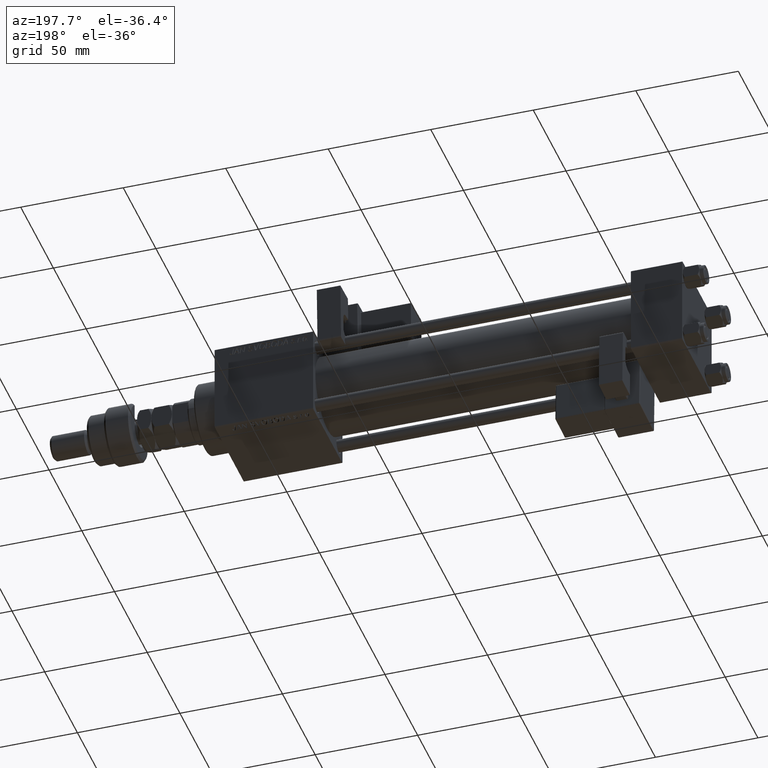
[diagram: clean part render]
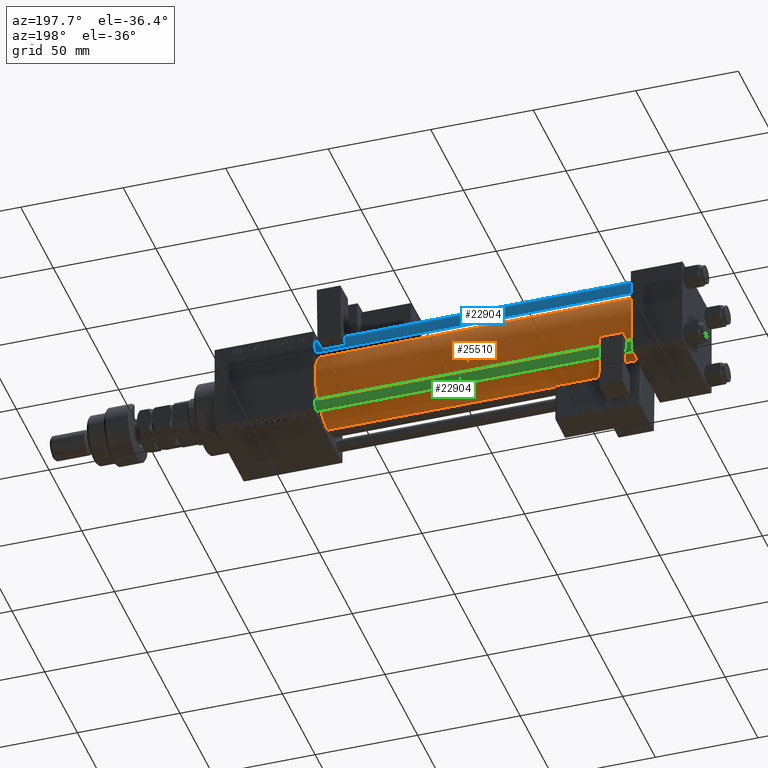
[diagram: same view with three faces highlighted in distinct colors, each labeled with its STEP entity id]
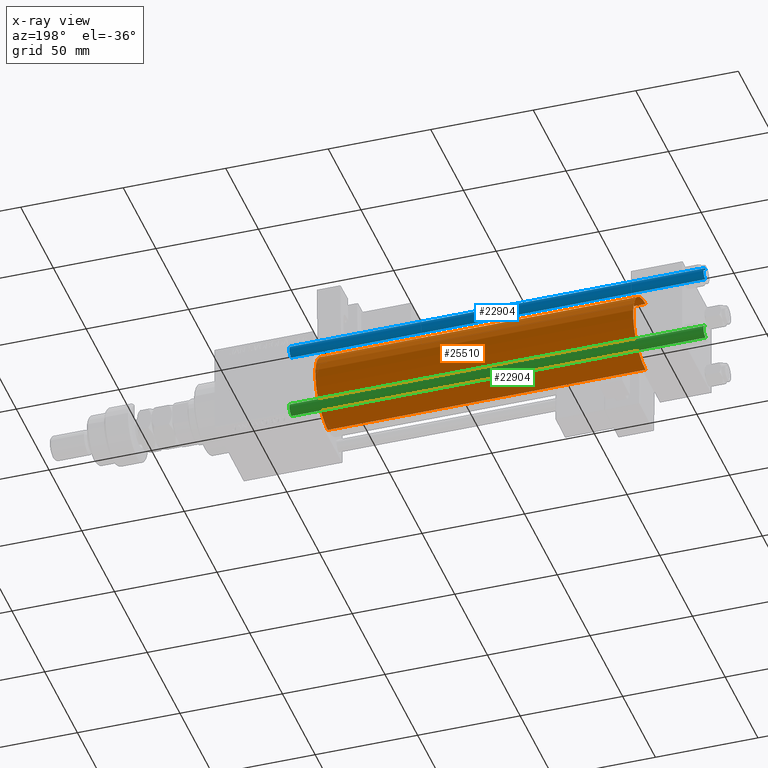
[diagram: x-ray of the same camera — body ghosted, the three highlighted faces saturated]
A machine part, auxiliary view with three faces highlighted in distinct colors.
The next image is the same camera in x-ray (body ghosted, the three faces saturated) — at least one of them is partly hidden behind the body in this view.
Their STEP definitions:

[orange] entity #25510 — the highlighted cylindrical surface (partial cylindrical patch) has radius 19 mm, axis along (-1, -0, -0).
#1004 = DIRECTION ( 'NONE',  ( 1.000000000000000000, 0.000000000000000000, 0.000000000000000000 ) ) ;
#2921 = EDGE_LOOP ( 'NONE', ( #24106, #9948, #3777, #14807 ) ) ;
#3777 = ORIENTED_EDGE ( 'NONE', *, *, #40003, .T. ) ;
#6542 = CARTESIAN_POINT ( 'NONE',  ( 24.99999999999999289, -2.602085213965210642E-15, 0.000000000000000000 ) ) ;
#7834 = EDGE_CURVE ( 'NONE', #16027, #47866, #12223, .T. ) ;
#9948 = ORIENTED_EDGE ( 'NONE', *, *, #13342, .T. ) ;
#10265 = DIRECTION ( 'NONE',  ( 0.000000000000000000, 0.000000000000000000, -1.000000000000000000 ) ) ;
#11372 = VECTOR ( 'NONE', #17834, 1000.000000000000000 ) ;
#12223 = CIRCLE ( 'NONE', #33664, 19.00000000000000000 ) ;
#13342 = EDGE_CURVE ( 'NONE', #16027, #51656, #40198, .T. ) ;
#14807 = ORIENTED_EDGE ( 'NONE', *, *, #43627, .F. ) ;
#15056 = CARTESIAN_POINT ( 'NONE',  ( 24.99999999999999289, -2.602085213965210642E-15, 19.00000000000000000 ) ) ;
#16027 = VERTEX_POINT ( 'NONE', #22408 ) ;
#16064 = CYLINDRICAL_SURFACE ( 'NONE', #25097, 19.00000000000000000 ) ;
#17834 = DIRECTION ( 'NONE',  ( -1.000000000000000000, -0.000000000000000000, -0.000000000000000000 ) ) ;
#18949 = CARTESIAN_POINT ( 'NONE',  ( 180.0000000000000000, -2.602085213965210642E-15, 0.000000000000000000 ) ) ;
#19442 = DIRECTION ( 'NONE',  ( 0.000000000000000000, 0.000000000000000000, 1.000000000000000000 ) ) ;
#21959 = AXIS2_PLACEMENT_3D ( 'NONE', #6542, #23658, #19442 ) ;
#22408 = CARTESIAN_POINT ( 'NONE',  ( 180.0000000000000000, -2.752562955852396712E-16, -19.00000000000000000 ) ) ;
#23658 = DIRECTION ( 'NONE',  ( 1.000000000000000000, -0.000000000000000000, 0.000000000000000000 ) ) ;
#23823 = CARTESIAN_POINT ( 'NONE',  ( 180.0000000000000000, -2.602085213965210642E-15, 19.00000000000000000 ) ) ;
#24106 = ORIENTED_EDGE ( 'NONE', *, *, #7834, .F. ) ;
#24212 = CARTESIAN_POINT ( 'NONE',  ( 180.0000000000000000, -2.602085213965210642E-15, 0.000000000000000000 ) ) ;
#25097 = AXIS2_PLACEMENT_3D ( 'NONE', #24212, #37884, #28125 ) ;
#25510 = ADVANCED_FACE ( 'NONE', ( #40977 ), #16064, .T. ) ;
#26465 = CARTESIAN_POINT ( 'NONE',  ( 180.0000000000000000, -2.602085213965210642E-15, 19.00000000000000000 ) ) ;
#28125 = DIRECTION ( 'NONE',  ( 0.000000000000000000, 0.000000000000000000, 1.000000000000000000 ) ) ;
#29839 = DIRECTION ( 'NONE',  ( -1.000000000000000000, -0.000000000000000000, -0.000000000000000000 ) ) ;
#30181 = CARTESIAN_POINT ( 'NONE',  ( 24.99999999999999289, -2.752562955852396712E-16, -19.00000000000000000 ) ) ;
#33664 = AXIS2_PLACEMENT_3D ( 'NONE', #18949, #1004, #10265 ) ;
#37884 = DIRECTION ( 'NONE',  ( -1.000000000000000000, -0.000000000000000000, -0.000000000000000000 ) ) ;
#40003 = EDGE_CURVE ( 'NONE', #51656, #46651, #46069, .T. ) ;
#40198 = LINE ( 'NONE', #44119, #11372 ) ;
#40977 = FACE_OUTER_BOUND ( 'NONE', #2921, .T. ) ;
#43627 = EDGE_CURVE ( 'NONE', #47866, #46651, #47709, .T. ) ;
#44119 = CARTESIAN_POINT ( 'NONE',  ( 180.0000000000000000, -2.752562955852396712E-16, -19.00000000000000000 ) ) ;
#46069 = CIRCLE ( 'NONE', #21959, 19.00000000000000000 ) ;
#46237 = VECTOR ( 'NONE', #29839, 1000.000000000000000 ) ;
#46651 = VERTEX_POINT ( 'NONE', #15056 ) ;
#47709 = LINE ( 'NONE', #26465, #46237 ) ;
#47866 = VERTEX_POINT ( 'NONE', #23823 ) ;
#51656 = VERTEX_POINT ( 'NONE', #30181 ) ;

[blue] entity #22904 — the highlighted cylindrical surface (edge-blend (fillet) strip) has radius 3 mm, axis along (-1, 0, 0).
#2192 = VERTEX_POINT ( 'NONE', #43829 ) ;
#2304 = LINE ( 'NONE', #11292, #29148 ) ;
#4914 = VERTEX_POINT ( 'NONE', #45361 ) ;
#8970 = ORIENTED_EDGE ( 'NONE', *, *, #41607, .F. ) ;
#9900 = ORIENTED_EDGE ( 'NONE', *, *, #53137, .T. ) ;
#10441 = EDGE_CURVE ( 'NONE', #50432, #4914, #2304, .T. ) ;
#11125 = FACE_OUTER_BOUND ( 'NONE', #25184, .T. ) ;
#11292 = CARTESIAN_POINT ( 'NONE',  ( 3.000000000000000444, 3.673940397442059868E-16, 203.0000000000000000 ) ) ;
#13398 = ORIENTED_EDGE ( 'NONE', *, *, #46546, .T. ) ;
#13432 = VERTEX_POINT ( 'NONE', #24525 ) ;
#14246 = DIRECTION ( 'NONE',  ( -0.000000000000000000, -0.000000000000000000, 1.000000000000000000 ) ) ;
#15727 = AXIS2_PLACEMENT_3D ( 'NONE', #28460, #40744, #49428 ) ;
#16166 = CYLINDRICAL_SURFACE ( 'NONE', #44734, 3.000000000000000444 ) ;
#17326 = CARTESIAN_POINT ( 'NONE',  ( 3.000000000000000444, 3.673940397442059868E-16, 202.5000000000000853 ) ) ;
#18295 = CIRCLE ( 'NONE', #15727, 3.000000000000000444 ) ;
#22904 = ADVANCED_FACE ( 'NONE', ( #11125 ), #16166, .T. ) ;
#23158 = AXIS2_PLACEMENT_3D ( 'NONE', #40516, #14246, #31343 ) ;
#23754 = DIRECTION ( 'NONE',  ( -0.000000000000000000, -0.000000000000000000, -1.000000000000000000 ) ) ;
#24525 = CARTESIAN_POINT ( 'NONE',  ( -3.000000000000000444, 0.000000000000000000, 0.5000000000001114664 ) ) ;
#25184 = EDGE_LOOP ( 'NONE', ( #9900, #37582, #13398, #8970 ) ) ;
#28229 = CARTESIAN_POINT ( 'NONE',  ( 0.000000000000000000, 0.000000000000000000, 203.0000000000000000 ) ) ;
#28460 = CARTESIAN_POINT ( 'NONE',  ( 0.000000000000000000, 0.000000000000000000, 202.5000000000000853 ) ) ;
#29148 = VECTOR ( 'NONE', #54142, 1000.000000000000000 ) ;
#31343 = DIRECTION ( 'NONE',  ( 1.000000000000000000, 0.000000000000000000, 0.000000000000000000 ) ) ;
#32991 = CIRCLE ( 'NONE', #23158, 3.000000000000000444 ) ;
#37582 = ORIENTED_EDGE ( 'NONE', *, *, #10441, .T. ) ;
#40516 = CARTESIAN_POINT ( 'NONE',  ( 0.000000000000000000, 0.000000000000000000, 0.5000000000001114664 ) ) ;
#40744 = DIRECTION ( 'NONE',  ( 0.000000000000000000, 0.000000000000000000, -1.000000000000000000 ) ) ;
#41607 = EDGE_CURVE ( 'NONE', #2192, #13432, #54110, .T. ) ;
#43829 = CARTESIAN_POINT ( 'NONE',  ( -3.000000000000000444, 0.000000000000000000, 202.5000000000000853 ) ) ;
#44604 = CARTESIAN_POINT ( 'NONE',  ( -3.000000000000000444, 0.000000000000000000, 203.0000000000000000 ) ) ;
#44734 = AXIS2_PLACEMENT_3D ( 'NONE', #28229, #23754, #46114 ) ;
#45361 = CARTESIAN_POINT ( 'NONE',  ( 3.000000000000000444, 3.673940397442059868E-16, 0.5000000000001114664 ) ) ;
#46114 = DIRECTION ( 'NONE',  ( -1.000000000000000000, 0.000000000000000000, 0.000000000000000000 ) ) ;
#46546 = EDGE_CURVE ( 'NONE', #4914, #13432, #32991, .T. ) ;
#47036 = VECTOR ( 'NONE', #48521, 1000.000000000000000 ) ;
#48521 = DIRECTION ( 'NONE',  ( -0.000000000000000000, -0.000000000000000000, -1.000000000000000000 ) ) ;
#49428 = DIRECTION ( 'NONE',  ( 1.000000000000000000, 0.000000000000000000, 0.000000000000000000 ) ) ;
#50432 = VERTEX_POINT ( 'NONE', #17326 ) ;
#53137 = EDGE_CURVE ( 'NONE', #2192, #50432, #18295, .T. ) ;
#54110 = LINE ( 'NONE', #44604, #47036 ) ;
#54142 = DIRECTION ( 'NONE',  ( -0.000000000000000000, -0.000000000000000000, -1.000000000000000000 ) ) ;

[green] entity #22904 — the highlighted cylindrical surface (edge-blend (fillet) strip) has radius 3 mm, axis along (1, -0, 0).
#2192 = VERTEX_POINT ( 'NONE', #43829 ) ;
#2304 = LINE ( 'NONE', #11292, #29148 ) ;
#4914 = VERTEX_POINT ( 'NONE', #45361 ) ;
#8970 = ORIENTED_EDGE ( 'NONE', *, *, #41607, .F. ) ;
#9900 = ORIENTED_EDGE ( 'NONE', *, *, #53137, .T. ) ;
#10441 = EDGE_CURVE ( 'NONE', #50432, #4914, #2304, .T. ) ;
#11125 = FACE_OUTER_BOUND ( 'NONE', #25184, .T. ) ;
#11292 = CARTESIAN_POINT ( 'NONE',  ( 3.000000000000000444, 3.673940397442059868E-16, 203.0000000000000000 ) ) ;
#13398 = ORIENTED_EDGE ( 'NONE', *, *, #46546, .T. ) ;
#13432 = VERTEX_POINT ( 'NONE', #24525 ) ;
#14246 = DIRECTION ( 'NONE',  ( -0.000000000000000000, -0.000000000000000000, 1.000000000000000000 ) ) ;
#15727 = AXIS2_PLACEMENT_3D ( 'NONE', #28460, #40744, #49428 ) ;
#16166 = CYLINDRICAL_SURFACE ( 'NONE', #44734, 3.000000000000000444 ) ;
#17326 = CARTESIAN_POINT ( 'NONE',  ( 3.000000000000000444, 3.673940397442059868E-16, 202.5000000000000853 ) ) ;
#18295 = CIRCLE ( 'NONE', #15727, 3.000000000000000444 ) ;
#22904 = ADVANCED_FACE ( 'NONE', ( #11125 ), #16166, .T. ) ;
#23158 = AXIS2_PLACEMENT_3D ( 'NONE', #40516, #14246, #31343 ) ;
#23754 = DIRECTION ( 'NONE',  ( -0.000000000000000000, -0.000000000000000000, -1.000000000000000000 ) ) ;
#24525 = CARTESIAN_POINT ( 'NONE',  ( -3.000000000000000444, 0.000000000000000000, 0.5000000000001114664 ) ) ;
#25184 = EDGE_LOOP ( 'NONE', ( #9900, #37582, #13398, #8970 ) ) ;
#28229 = CARTESIAN_POINT ( 'NONE',  ( 0.000000000000000000, 0.000000000000000000, 203.0000000000000000 ) ) ;
#28460 = CARTESIAN_POINT ( 'NONE',  ( 0.000000000000000000, 0.000000000000000000, 202.5000000000000853 ) ) ;
#29148 = VECTOR ( 'NONE', #54142, 1000.000000000000000 ) ;
#31343 = DIRECTION ( 'NONE',  ( 1.000000000000000000, 0.000000000000000000, 0.000000000000000000 ) ) ;
#32991 = CIRCLE ( 'NONE', #23158, 3.000000000000000444 ) ;
#37582 = ORIENTED_EDGE ( 'NONE', *, *, #10441, .T. ) ;
#40516 = CARTESIAN_POINT ( 'NONE',  ( 0.000000000000000000, 0.000000000000000000, 0.5000000000001114664 ) ) ;
#40744 = DIRECTION ( 'NONE',  ( 0.000000000000000000, 0.000000000000000000, -1.000000000000000000 ) ) ;
#41607 = EDGE_CURVE ( 'NONE', #2192, #13432, #54110, .T. ) ;
#43829 = CARTESIAN_POINT ( 'NONE',  ( -3.000000000000000444, 0.000000000000000000, 202.5000000000000853 ) ) ;
#44604 = CARTESIAN_POINT ( 'NONE',  ( -3.000000000000000444, 0.000000000000000000, 203.0000000000000000 ) ) ;
#44734 = AXIS2_PLACEMENT_3D ( 'NONE', #28229, #23754, #46114 ) ;
#45361 = CARTESIAN_POINT ( 'NONE',  ( 3.000000000000000444, 3.673940397442059868E-16, 0.5000000000001114664 ) ) ;
#46114 = DIRECTION ( 'NONE',  ( -1.000000000000000000, 0.000000000000000000, 0.000000000000000000 ) ) ;
#46546 = EDGE_CURVE ( 'NONE', #4914, #13432, #32991, .T. ) ;
#47036 = VECTOR ( 'NONE', #48521, 1000.000000000000000 ) ;
#48521 = DIRECTION ( 'NONE',  ( -0.000000000000000000, -0.000000000000000000, -1.000000000000000000 ) ) ;
#49428 = DIRECTION ( 'NONE',  ( 1.000000000000000000, 0.000000000000000000, 0.000000000000000000 ) ) ;
#50432 = VERTEX_POINT ( 'NONE', #17326 ) ;
#53137 = EDGE_CURVE ( 'NONE', #2192, #50432, #18295, .T. ) ;
#54110 = LINE ( 'NONE', #44604, #47036 ) ;
#54142 = DIRECTION ( 'NONE',  ( -0.000000000000000000, -0.000000000000000000, -1.000000000000000000 ) ) ;